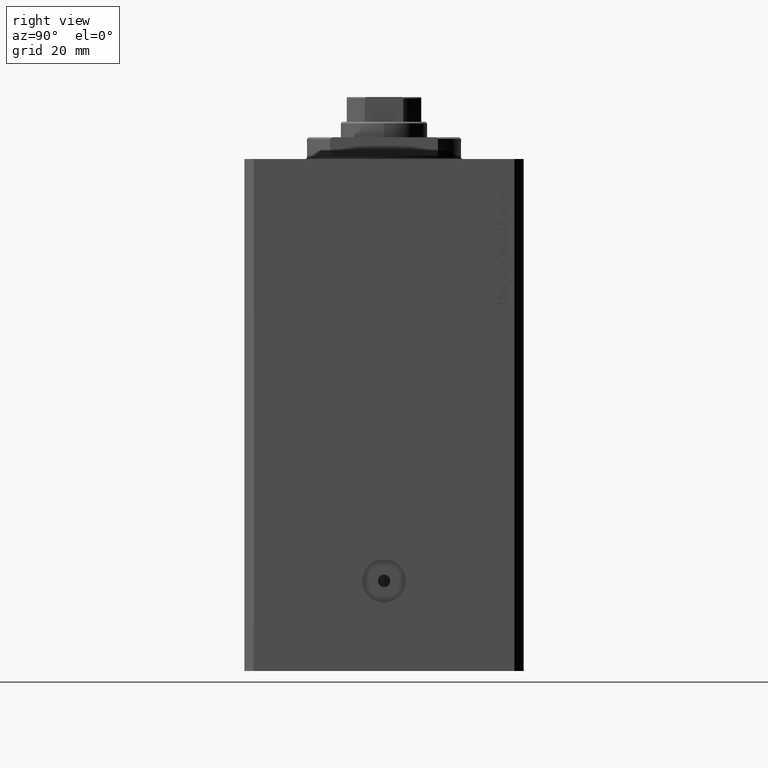
[diagram: clean part render]
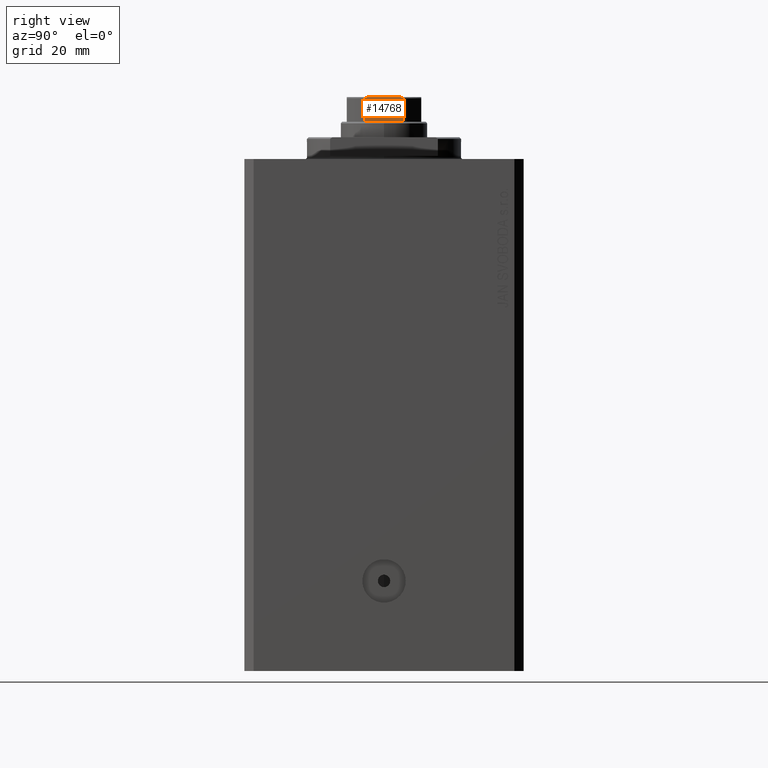
[diagram: same view with one face highlighted and labeled with its STEP entity id]
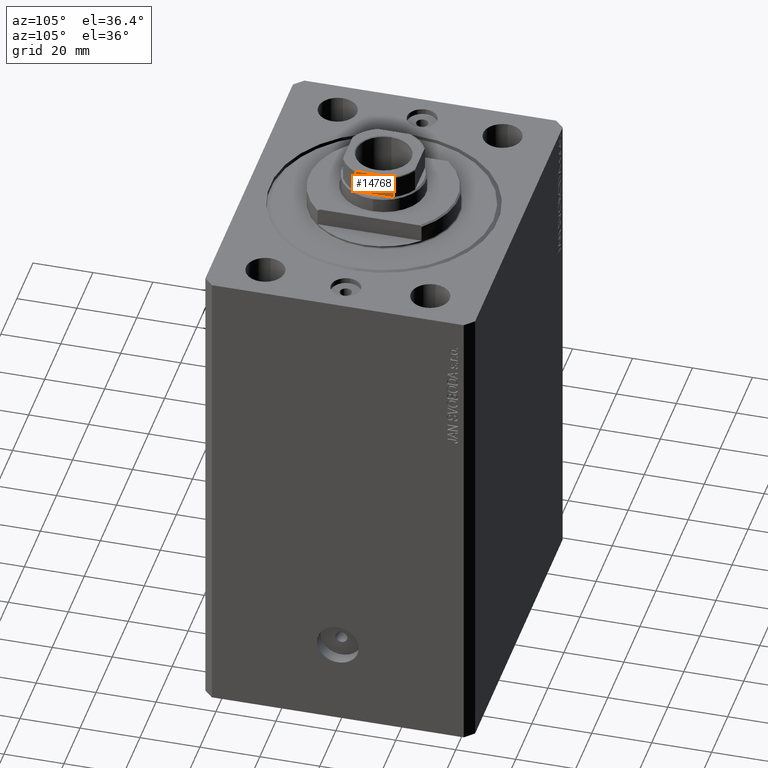
[diagram: same view with one face highlighted and labeled with its STEP entity id]
A machine part, right view. The second image highlights one B-rep face of the part: STEP entity #14768.
A second angle (auxiliary view) of the same face is appended — the face is thin or edge-on in the first view.
In plain terms, the highlighted planar face has unit normal (-1, -0, 0).
Its self-contained STEP definition (entity closure, byte-faithful):
#793 = EDGE_CURVE ( 'NONE', #26843, #21856, #28484, .T. ) ;
#873 = CARTESIAN_POINT ( 'NONE',  ( 12.00000000000000355, 5.230795946637840643, 167.1000000000000227 ) ) ;
#1321 = CARTESIAN_POINT ( 'NONE',  ( 12.00000000000000000, 6.184658438426490434, 166.6000000000000227 ) ) ;
#1536 = ORIENTED_EDGE ( 'NONE', *, *, #12033, .T. ) ;
#2490 = FACE_OUTER_BOUND ( 'NONE', #26442, .T. ) ;
#2599 = VERTEX_POINT ( 'NONE', #6054 ) ;
#2750 = CARTESIAN_POINT ( 'NONE',  ( 12.00000000000000000, 6.184658438426490434, 166.6000000000000227 ) ) ;
#2922 = CARTESIAN_POINT ( 'NONE',  ( 12.00000000000000533, -5.793822051191352962, 166.9841735219943928 ) ) ;
#3819 = CARTESIAN_POINT ( 'NONE',  ( 12.00000000000000178, -4.999999999999990230, 167.1000000000000227 ) ) ;
#4295 = ORIENTED_EDGE ( 'NONE', *, *, #12401, .T. ) ;
#4884 = DIRECTION ( 'NONE',  ( -0.000000000000000000, -0.000000000000000000, 1.000000000000000000 ) ) ;
#5080 = DIRECTION ( 'NONE',  ( -0.000000000000000000, -0.000000000000000000, 1.000000000000000000 ) ) ;
#5266 = CARTESIAN_POINT ( 'NONE',  ( 12.00000000000000000, -6.184658438426490434, 166.6000000000000227 ) ) ;
#5876 = PLANE ( 'NONE',  #31350 ) ;
#6054 = CARTESIAN_POINT ( 'NONE',  ( 12.00000000000000178, -4.999999999999990230, 167.1000000000000227 ) ) ;
#6758 = CARTESIAN_POINT ( 'NONE',  ( 12.00000000000000355, -5.230809753656809669, 167.1000000000000512 ) ) ;
#7755 = ORIENTED_EDGE ( 'NONE', *, *, #27369, .F. ) ;
#11023 = CARTESIAN_POINT ( 'NONE',  ( 12.00000000000000178, 4.999999999999994671, 167.1000000000000227 ) ) ;
#12033 = EDGE_CURVE ( 'NONE', #31184, #13472, #12242, .T. ) ;
#12242 = LINE ( 'NONE', #33338, #39893 ) ;
#12352 = CARTESIAN_POINT ( 'NONE',  ( 12.00000000000000000, 6.184658438426490434, 159.1000000000000512 ) ) ;
#12401 = EDGE_CURVE ( 'NONE', #2599, #37280, #21422, .T. ) ;
#12455 = DIRECTION ( 'NONE',  ( -1.445602896647339163E-16, 1.000000000000000000, -0.000000000000000000 ) ) ;
#12477 = CARTESIAN_POINT ( 'NONE',  ( 12.00000000000000178, 4.999999999999994671, 167.1000000000000227 ) ) ;
#13163 = ORIENTED_EDGE ( 'NONE', *, *, #20724, .T. ) ;
#13472 = VERTEX_POINT ( 'NONE', #12352 ) ;
#14425 = ORIENTED_EDGE ( 'NONE', *, *, #793, .T. ) ;
#14768 = ADVANCED_FACE ( 'NONE', ( #2490 ), #5876, .F. ) ;
#15065 = CARTESIAN_POINT ( 'NONE',  ( 12.00000000000000178, 6.046414714222230202, 166.8457872300292877 ) ) ;
#15788 = DIRECTION ( 'NONE',  ( -1.000000000000000000, -1.445602896647339163E-16, 0.000000000000000000 ) ) ;
#16649 = CARTESIAN_POINT ( 'NONE',  ( 12.00000000000000178, -6.091027642353950888, 166.8080088155617204 ) ) ;
#16868 = CARTESIAN_POINT ( 'NONE',  ( 12.00000000000000711, -6.184658438426490434, 166.6589821493408010 ) ) ;
#16869 = VECTOR ( 'NONE', #5080, 1000.000000000000000 ) ;
#17085 = CARTESIAN_POINT ( 'NONE',  ( 12.00000000000000000, 12.00000000000000000, 167.1000000000000227 ) ) ;
#19689 = LINE ( 'NONE', #42601, #16869 ) ;
#19823 = DIRECTION ( 'NONE',  ( 1.445602896647339163E-16, -1.000000000000000000, 0.000000000000000000 ) ) ;
#20452 = DIRECTION ( 'NONE',  ( -1.445602896647339163E-16, 1.000000000000000000, -0.000000000000000000 ) ) ;
#20724 = EDGE_CURVE ( 'NONE', #13472, #26843, #43509, .T. ) ;
#21422 = B_SPLINE_CURVE_WITH_KNOTS ( 'NONE', 3,
 ( #3819, #6758, #44504, #2922, #26986, #41119, #16649, #33730, #16868, #23618 ),
 .UNSPECIFIED., .F., .F.,
 ( 4, 2, 2, 2, 4 ),
 ( 8.673617379884035472E-19, 0.0006877128613558392391, 0.001031569292033768454, 0.001203497507372732140, 0.001375425722711695609 ),
 .UNSPECIFIED. ) ;
#21856 = VERTEX_POINT ( 'NONE', #12477 ) ;
#21959 = CARTESIAN_POINT ( 'NONE',  ( 12.00000000000000000, 6.184658438426490434, -0.001000000000001000089 ) ) ;
#23618 = CARTESIAN_POINT ( 'NONE',  ( 12.00000000000000000, -6.184658438426490434, 166.6000000000000227 ) ) ;
#23888 = CARTESIAN_POINT ( 'NONE',  ( 12.00000000000000000, -6.184658438426490434, 159.1000000000000512 ) ) ;
#25165 = CARTESIAN_POINT ( 'NONE',  ( 12.00000000000000355, 6.184658438426492211, 166.6589344020394776 ) ) ;
#25613 = CARTESIAN_POINT ( 'NONE',  ( 12.00000000000000355, 5.900889097622410873, 166.9429613869932894 ) ) ;
#25896 = CARTESIAN_POINT ( 'NONE',  ( 12.00000000000000000, 12.00000000000000000, 167.1000000000000227 ) ) ;
#26442 = EDGE_LOOP ( 'NONE', ( #39442, #4295, #7755, #1536, #13163, #14425 ) ) ;
#26843 = VERTEX_POINT ( 'NONE', #2750 ) ;
#26986 = CARTESIAN_POINT ( 'NONE',  ( 12.00000000000000533, -5.903192932991086828, 166.9415152347680760 ) ) ;
#27369 = EDGE_CURVE ( 'NONE', #31184, #37280, #19689, .T. ) ;
#27778 = VECTOR ( 'NONE', #20452, 1000.000000000000000 ) ;
#28321 = CARTESIAN_POINT ( 'NONE',  ( 12.00000000000000000, 6.161088279078725805, 166.7146234191510246 ) ) ;
#28484 = B_SPLINE_CURVE_WITH_KNOTS ( 'NONE', 3,
 ( #1321, #25165, #28321, #39090, #15065, #25613, #39316, #28765, #873, #11023 ),
 .UNSPECIFIED., .F., .F.,
 ( 4, 2, 2, 2, 4 ),
 ( 0.000000000000000000, 0.0001740189231935563099, 0.0003480378463871126198, 0.0006960756927741791611, 0.001392151385548337939 ),
 .UNSPECIFIED. ) ;
#28765 = CARTESIAN_POINT ( 'NONE',  ( 12.00000000000000533, 5.458892612163320557, 167.0796099716498304 ) ) ;
#31184 = VERTEX_POINT ( 'NONE', #23888 ) ;
#31350 = AXIS2_PLACEMENT_3D ( 'NONE', #25896, #15788, #19823 ) ;
#31830 = LINE ( 'NONE', #17085, #27778 ) ;
#33338 = CARTESIAN_POINT ( 'NONE',  ( 12.00000000000000000, 12.00000000000000000, 159.1000000000000227 ) ) ;
#33730 = CARTESIAN_POINT ( 'NONE',  ( 12.00000000000000888, -6.160856115322530968, 166.7149782197479340 ) ) ;
#36525 = VECTOR ( 'NONE', #4884, 1000.000000000000000 ) ;
#37280 = VERTEX_POINT ( 'NONE', #5266 ) ;
#38568 = EDGE_CURVE ( 'NONE', #2599, #21856, #31830, .T. ) ;
#39090 = CARTESIAN_POINT ( 'NONE',  ( 11.99999999999999822, 6.091003570118822097, 166.8080862465981511 ) ) ;
#39316 = CARTESIAN_POINT ( 'NONE',  ( 12.00000000000000355, 5.792513940493504876, 166.9846382036010084 ) ) ;
#39442 = ORIENTED_EDGE ( 'NONE', *, *, #38568, .F. ) ;
#39893 = VECTOR ( 'NONE', #12455, 1000.000000000000000 ) ;
#41119 = CARTESIAN_POINT ( 'NONE',  ( 12.00000000000000178, -6.045866546018578980, 166.8461068616299485 ) ) ;
#42601 = CARTESIAN_POINT ( 'NONE',  ( 12.00000000000000000, -6.184658438426490434, -0.001000000000001000089 ) ) ;
#43509 = LINE ( 'NONE', #21959, #36525 ) ;
#44504 = CARTESIAN_POINT ( 'NONE',  ( 12.00000000000000355, -5.459934723612532181, 167.0794964115812604 ) ) ;